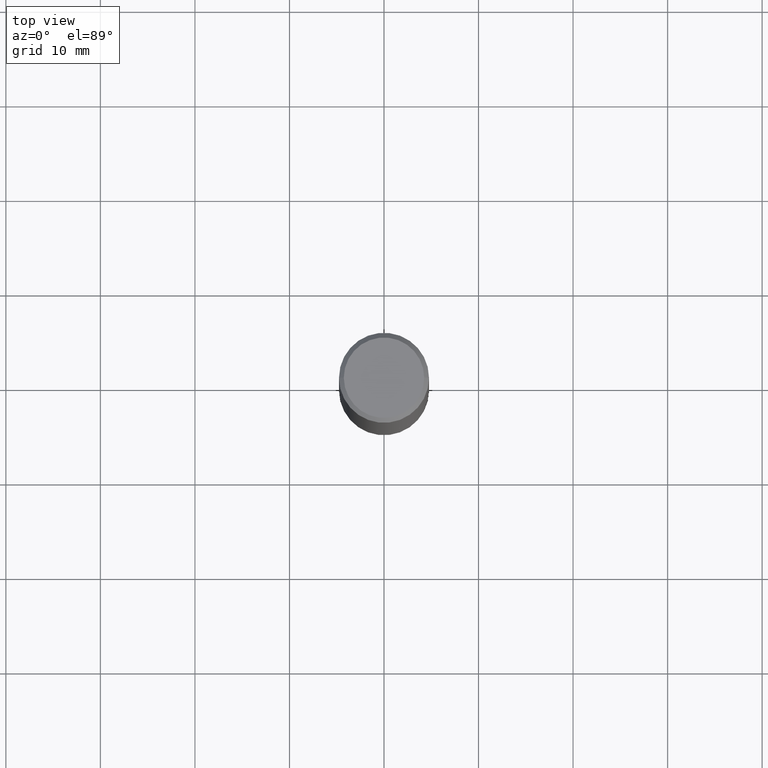
[diagram: clean part render]
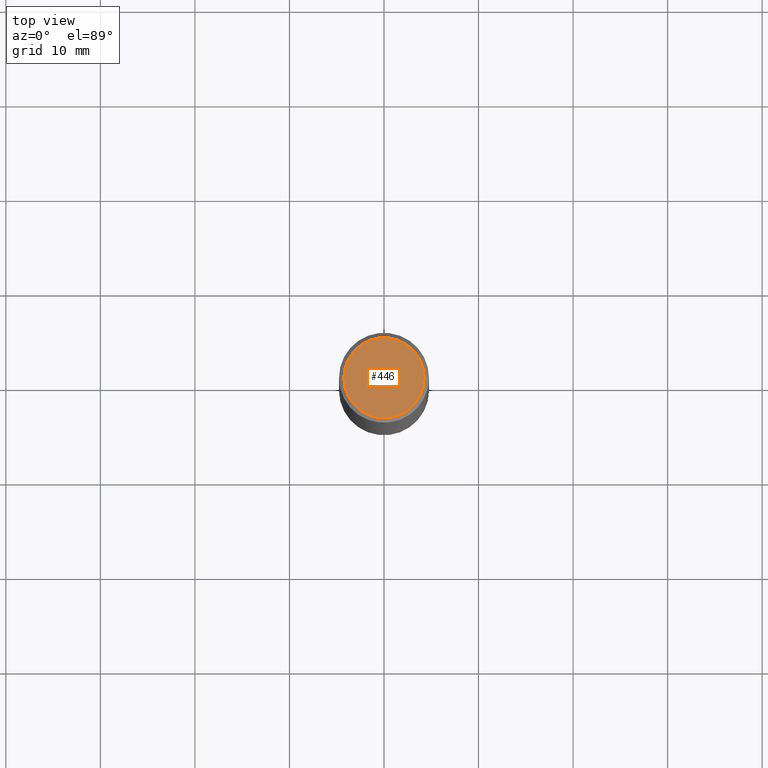
[diagram: same view with one face highlighted and labeled with its STEP entity id]
A machine part, top view. The second image highlights one B-rep face of the part: STEP entity #446.
In plain terms, the highlighted planar face has unit normal (0, -0, -1).
Its self-contained STEP definition (entity closure, byte-faithful):
#4 = DIRECTION ( 'NONE',  ( -1.000000000000000000, 6.982962677686265922E-15, -4.876176775795935793E-29 ) ) ;
#9 = CARTESIAN_POINT ( 'NONE',  ( -1.043851414335219820E-46, 1.490343170380447200E-32, 4.268512490100411279E-18 ) ) ;
#13 = AXIS2_PLACEMENT_3D ( 'NONE', #264, #355, #4 ) ;
#14 = CARTESIAN_POINT ( 'NONE',  ( -1.043851414335219820E-46, 1.490343170380447200E-32, 4.268512490100411279E-18 ) ) ;
#78 = EDGE_CURVE ( 'NONE', #115, #149, #385, .T. ) ;
#81 = DIRECTION ( 'NONE',  ( -2.445468806185136597E-29, 3.491481338843145583E-15, 1.000000000000000000 ) ) ;
#115 = VERTEX_POINT ( 'NONE', #440 ) ;
#117 = EDGE_LOOP ( 'NONE', ( #343, #447 ) ) ;
#126 = CARTESIAN_POINT ( 'NONE',  ( -0.1674999999999991773, 1.204561061900875131E-15, 4.268512490092109750E-18 ) ) ;
#129 = DIRECTION ( 'NONE',  ( 1.000000000000000000, -6.982962677686265133E-15, 4.875936752492917305E-29 ) ) ;
#136 = CIRCLE ( 'NONE', #351, 0.1674999999999991773 ) ;
#149 = VERTEX_POINT ( 'NONE', #126 ) ;
#176 = EDGE_CURVE ( 'NONE', #149, #115, #136, .T. ) ;
#213 = DIRECTION ( 'NONE',  ( 1.000000000000000000, -6.982962677686265133E-15, 4.875936752492917305E-29 ) ) ;
#264 = CARTESIAN_POINT ( 'NONE',  ( 1.169646248512443679E-15, 0.1674999999999991773, -5.826888680111736968E-16 ) ) ;
#343 = ORIENTED_EDGE ( 'NONE', *, *, #176, .T. ) ;
#345 = FACE_OUTER_BOUND ( 'NONE', #117, .T. ) ;
#351 = AXIS2_PLACEMENT_3D ( 'NONE', #14, #81, #213 ) ;
#355 = DIRECTION ( 'NONE',  ( 2.438088387897960049E-29, -3.491481338843145188E-15, -1.000000000000000000 ) ) ;
#369 = AXIS2_PLACEMENT_3D ( 'NONE', #9, #438, #129 ) ;
#385 = CIRCLE ( 'NONE', #369, 0.1674999999999991773 ) ;
#423 = PLANE ( 'NONE',  #13 ) ;
#438 = DIRECTION ( 'NONE',  ( -2.445468806185136597E-29, 3.491481338843145583E-15, 1.000000000000000000 ) ) ;
#440 = CARTESIAN_POINT ( 'NONE',  ( 0.1674999999999991773, -1.252653207992872766E-15, 4.268512490108880748E-18 ) ) ;
#446 = ADVANCED_FACE ( 'NONE', ( #345 ), #423, .F. ) ;
#447 = ORIENTED_EDGE ( 'NONE', *, *, #78, .T. ) ;